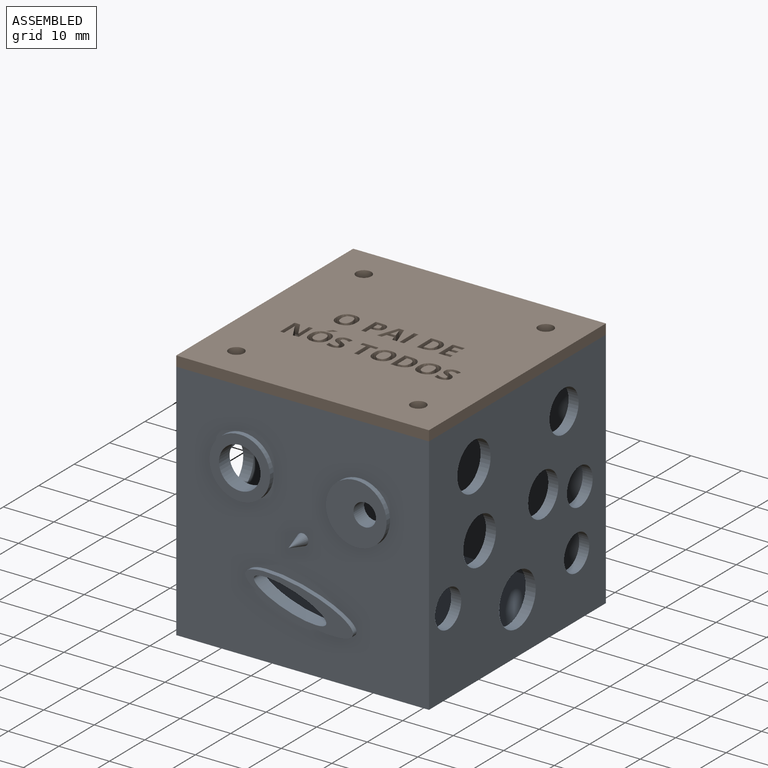
[diagram: assembled view]
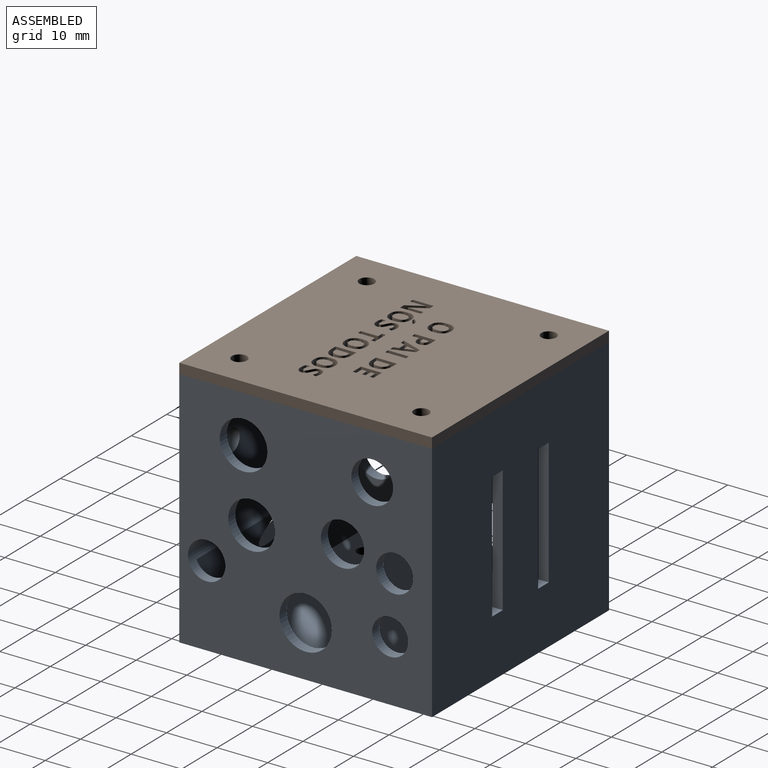
[diagram: assembled view, second angle]
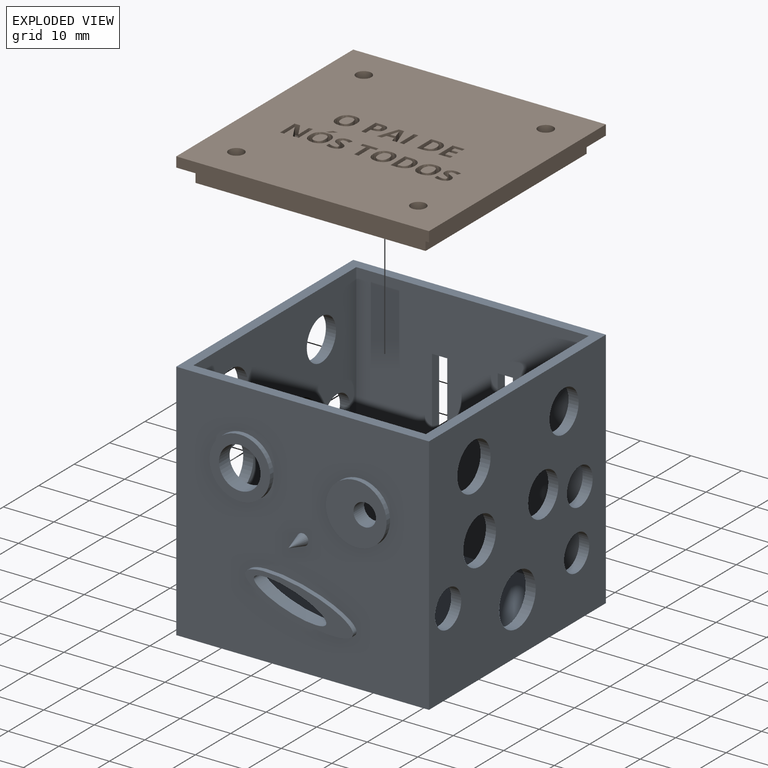
[diagram: exploded view]
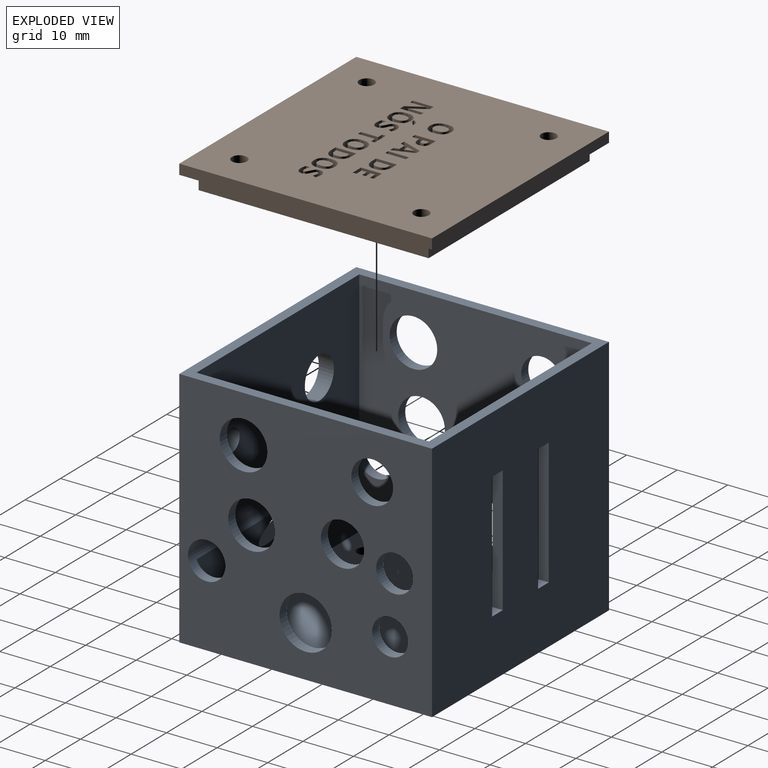
[diagram: exploded view, second angle]
ASSEMBLY  parts=2 mates=3
PART A: 49 faces, bbox 50x54x48 mm
  f0: plane 50x48mm, normal (0,1,0), area 2250mm2, adj f3,f4,f5,f7,f41,f42,f43,f44
  f1: plane 46x46mm, normal (0,-1,0), area 1966mm2, adj f3,f8,f10,f11,f41,f42,f43,f44
  f2: plane 46x12.63mm, normal (0,1,0), area 539.4mm2, adj f8,f10,f11,f22,f26
  f3: plane 50x50mm, normal (0,0,1), area 384mm2, adj f0,f1,f4,f5,f6,f8,f9,f10
  f4: plane 50x48mm, normal (1,0,0), area 1943.4mm2, adj f0,f3,f6,f7,f26,f27,f28,f29
  f5: plane 50x48mm, normal (-1,0,0), area 1943.4mm2, adj f0,f3,f6,f7,f26,f34,f35,f36
  f6: plane 50x48mm, normal (0,-1,0), area 2066.5mm2, adj f3,f4,f5,f7,f16,f18,f23,f25
  f7: plane 50x50mm, normal (0,0,-1), area 2471.7mm2, adj f0,f4,f5,f6,f12,f13,f14,f15
  f8: plane 46x46mm, normal (1,0,0), area 1659.9mm2, adj f1,f2,f3,f9,f11,f26,f34,f35
  f9: plane 46x30.52mm, normal (0,1,0), area 1335.2mm2, adj f3,f8,f10,f20,f21,f26
  f10: plane 46x46mm, normal (-1,0,0), area 1659.9mm2, adj f1,f2,f3,f9,f11,f26,f27,f28
  f11: plane 46x46mm, normal (0,0,1), area 2087.7mm2, adj f1,f2,f8,f10,f12,f13,f14,f15
  f12: cylinder r=1.5mm len=3mm, axis (0,0,1), area 18.8mm2, adj f7,f11
  f13: cylinder r=1.5mm len=3mm, axis (0,0,1), area 18.8mm2, adj f7,f11
  f14: cylinder r=1.5mm len=3mm, axis (0,0,1), area 18.8mm2, adj f7,f11
  f15: cylinder r=1.5mm len=3mm, axis (0,0,1), area 18.8mm2, adj f7,f11
  f16: cylinder r=5.99mm len=11.99mm, axis (0,1,0), area 37.7mm2, adj f6,f17
  f17: plane 11.99x11.99mm, normal (0,-1,0), area 59.7mm2, adj f16,f21
  f18: cylinder r=5.99mm len=11.99mm, axis (0,1,0), area 37.7mm2, adj f6,f19
  f19: plane 11.99x11.99mm, normal (0,-1,0), area 97.3mm2, adj f18,f20
  f20: cylinder r=2.22mm len=4.44mm, axis (0,-1,0), area 41.9mm2, adj f9,f19
  f21: cylinder r=4.11mm len=8.22mm, axis (0,-1,0), area 77.5mm2, adj f9,f17
  f22: extruded ~14.28x5.93mm, area 95.6mm2, adj f2,f24,f26
  f23: extruded ~21.3x8mm, area 47.7mm2, adj f6,f24
  f24: plane 21.35x8mm, normal (0,-1,0), area 56.5mm2, adj f22,f23
  f25: cone r=0mm half-angle=15.9deg, axis (0,1,0), area 14.9mm2, adj f6
  f26: cylinder r=3.7mm len=50mm, axis (1,0,0), area 222mm2, adj f2,f4,f5,f8,f9,f10,f22
  f27: cylinder r=4.71mm len=9.42mm, axis (1,0,0), area 59.2mm2, adj f4,f10
  f28: cylinder r=3.65mm len=7.3mm, axis (1,0,0), area 45.9mm2, adj f4,f10
  f29: cylinder r=3.56mm len=7.13mm, axis (1,0,0), area 44.8mm2, adj f4,f10
  f30: cylinder r=4.13mm len=8.26mm, axis (1,0,0), area 51.9mm2, adj f4,f10
  f31: cylinder r=4.28mm len=8.55mm, axis (1,0,0), area 53.7mm2, adj f4,f10
  f32: cylinder r=4.62mm len=9.24mm, axis (1,0,0), area 58.1mm2, adj f4,f10
  f33: cylinder r=5.17mm len=10.34mm, axis (1,0,0), area 65mm2, adj f4,f10
  f34: cylinder r=4.71mm len=9.42mm, axis (1,0,0), area 59.2mm2, adj f5,f8
  f35: cylinder r=3.65mm len=7.3mm, axis (1,0,0), area 45.9mm2, adj f5,f8
  f36: cylinder r=3.56mm len=7.13mm, axis (1,0,0), area 44.8mm2, adj f5,f8
  f37: cylinder r=4.13mm len=8.26mm, axis (1,0,0), area 51.9mm2, adj f5,f8
  f38: cylinder r=4.28mm len=8.55mm, axis (1,0,0), area 53.7mm2, adj f5,f8
  f39: cylinder r=4.62mm len=9.24mm, axis (1,0,0), area 58.1mm2, adj f5,f8
  f40: cylinder r=5.17mm len=10.34mm, axis (1,0,0), area 65mm2, adj f5,f8
  f41: plane 3x2mm, normal (0,0,-1), area 6mm2, adj f0,f1,f42,f44
  f42: plane 25x2mm, normal (-1,0,0), area 50mm2, adj f0,f1,f41,f43
  f43: plane 3x2mm, normal (0,0,1), area 6mm2, adj f0,f1,f42,f44
  f44: plane 25x2mm, normal (1,0,0), area 50mm2, adj f0,f1,f41,f43
  f45: plane 3x2mm, normal (0,0,-1), area 6mm2, adj f0,f1,f46,f48
  f46: plane 25x2mm, normal (-1,0,0), area 50mm2, adj f0,f1,f45,f47
  f47: plane 3x2mm, normal (0,0,1), area 6mm2, adj f0,f1,f46,f48
  f48: plane 25x2mm, normal (1,0,0), area 50mm2, adj f0,f1,f45,f47
PART B: 247 faces, bbox 50x50x5 mm
  f0: plane 50x50mm, normal (0,0,-1), area 2337mm2, adj f4,f5,f6,f7,f10,f11,f12,f13
  f1: plane 45.5x3mm, normal (0,1,0), area 136.5mm2, adj f2,f8,f9,f14
  f2: plane 45.5x3mm, normal (-1,0,0), area 136.5mm2, adj f1,f3,f9,f14
  f3: plane 45.5x3mm, normal (0,-1,0), area 136.5mm2, adj f2,f8,f9,f14
  f4: cylinder r=1.5mm len=5mm, axis (0,0,-1), area 47.1mm2, adj f0,f9
  f5: cylinder r=1.5mm len=5mm, axis (0,0,-1), area 47.1mm2, adj f0,f9
  f6: cylinder r=1.5mm len=5mm, axis (0,0,-1), area 47.1mm2, adj f0,f9
  f7: cylinder r=1.5mm len=5mm, axis (0,0,-1), area 47.1mm2, adj f0,f9
  f8: plane 45.5x3mm, normal (1,0,0), area 136.5mm2, adj f1,f3,f9,f14
  f9: plane 45.5x45.5mm, normal (0,0,1), area 2042mm2, adj f1,f2,f3,f4,f5,f6,f7,f8
  f10: plane 50x2mm, normal (0,-1,0), area 100mm2, adj f0,f11,f13,f14
  f11: plane 50x2mm, normal (1,0,0), area 100mm2, adj f0,f10,f12,f14
  f12: plane 50x2mm, normal (0,1,0), area 100mm2, adj f0,f11,f13,f14
  f13: plane 50x2mm, normal (-1,0,0), area 100mm2, adj f0,f10,f12,f14
  f14: plane 50x50mm, normal (0,0,1), area 429.7mm2, adj f1,f2,f3,f8,f10,f11,f12,f13
  f15: plane 4.11x2mm, normal (1,0,0), area 8.2mm2, adj f0,f16,f18,f19
  f16: plane 2x0.87mm, normal (0,-1,0), area 1.7mm2, adj f0,f15,f17,f19
  f17: plane 4.11x2mm, normal (-1,0,0), area 8.2mm2, adj f0,f16,f18,f19
  f18: plane 2x0.87mm, normal (0,1,0), area 1.7mm2, adj f0,f15,f17,f19
  f19: plane 4.11x0.87mm, normal (0,0,-1), area 3.6mm2, adj f15,f16,f17,f18
  f20: extruded ~2x1.5mm, area 3.1mm2, adj f21,f31,f32,f240
  f21: plane 2x1.07mm, normal (0,1,0), area 2.1mm2, adj f20,f22,f32,f240
  f22: extruded ~2x1.78mm, area 3.7mm2, adj f21,f31,f32,f240
  f23: plane 2x0.98mm, normal (0.96,-0.29,0), area 2mm2, adj f0,f24,f30,f32
  f24: plane 2x0.94mm, normal (0,-1,0), area 1.9mm2, adj f0,f23,f25,f32
  f25: plane 4.13x2mm, normal (-0.94,0.33,0), area 8.8mm2, adj f0,f24,f26,f32
  f26: plane 2x1.07mm, normal (0,1,0), area 2.1mm2, adj f0,f25,f27,f32
  f27: plane 4.13x2mm, normal (0.94,0.33,0), area 8.7mm2, adj f0,f26,f28,f32
  f28: plane 2x0.94mm, normal (0,-1,0), area 1.9mm2, adj f0,f27,f29,f32
  f29: plane 2x0.98mm, normal (-0.96,-0.29,0), area 2mm2, adj f0,f28,f30,f32
  f30: plane 2x1.5mm, normal (0,-1,0), area 3mm2, adj f0,f23,f29,f32
  f31: extruded ~2x0.28mm, area 0.6mm2, adj f20,f22,f32,f240
  f32: plane 4.13x3.97mm, normal (0,0,-1), area 7.7mm2, adj f20,f21,f22,f23,f24,f25,f26,f27
  f33: extruded ~2x1.32mm, area 4mm2, adj f34,f44,f45,f241
  f34: extruded ~2x1.35mm, area 4.2mm2, adj f33,f35,f45,f241
  f35: plane 2x0.37mm, normal (0,1,0), area 0.7mm2, adj f34,f36,f45,f241
  f36: plane 2.68x2mm, normal (-1,0,0), area 5.4mm2, adj f35,f44,f45,f241
  f37: extruded ~2x1.55mm, area 3.4mm2, adj f0,f38,f43,f45
  f38: extruded ~2x1.48mm, area 3.3mm2, adj f0,f37,f39,f45
  f39: extruded ~2x1.56mm, area 3.4mm2, adj f0,f38,f40,f45
  f40: plane 2x1.29mm, normal (0,1,0), area 2.6mm2, adj f0,f39,f41,f45
  f41: plane 4.11x2mm, normal (1,0,0), area 8.2mm2, adj f0,f40,f42,f45
  f42: plane 2x1.16mm, normal (0,-1,0), area 2.3mm2, adj f0,f41,f43,f45
  f43: extruded ~2x1.67mm, area 3.6mm2, adj f0,f37,f42,f45
  f44: plane 2x0.46mm, normal (0,-1,0), area 0.9mm2, adj f33,f36,f45,f241
  f45: plane 4.11x3.41mm, normal (0,0,-1), area 8.6mm2, adj f33,f34,f35,f36,f37,f38,f39,f40
  f46: extruded ~2x1.04mm, area 2.2mm2, adj f47,f59,f60,f242
  f47: extruded ~2x1.04mm, area 2.2mm2, adj f46,f48,f60,f242
  f48: extruded ~2x0.78mm, area 1.8mm2, adj f47,f49,f60,f242
  f49: extruded ~2x1.39mm, area 4mm2, adj f48,f50,f60,f242
  f50: extruded ~2x1.39mm, area 4mm2, adj f49,f59,f60,f242
  f51: extruded ~2x1.57mm, area 3.4mm2, adj f0,f52,f58,f60
  f52: extruded ~2x1.57mm, area 3.4mm2, adj f0,f51,f53,f60
  f53: extruded ~2x1.45mm, area 3.2mm2, adj f0,f52,f54,f60
  f54: extruded ~2x1.45mm, area 3.2mm2, adj f0,f53,f55,f60
  f55: extruded ~2x1.57mm, area 3.4mm2, adj f0,f54,f56,f60
  f56: extruded ~2x1.57mm, area 3.4mm2, adj f0,f55,f57,f60
  f57: extruded ~2x1.45mm, area 3.2mm2, adj f0,f56,f58,f60
  f58: extruded ~2x1.45mm, area 3.2mm2, adj f0,f51,f57,f60
  f59: extruded ~2x0.78mm, area 1.8mm2, adj f46,f50,f60,f242
  f60: plane 4.23x3.91mm, normal (0,0,-1), area 8.8mm2, adj f46,f47,f48,f49,f50,f51,f52,f53
  f61: extruded ~2x1.04mm, area 2.2mm2, adj f62,f74,f75,f243
  f62: extruded ~2x1.04mm, area 2.2mm2, adj f61,f63,f75,f243
  f63: extruded ~2x0.78mm, area 1.8mm2, adj f62,f64,f75,f243
  f64: extruded ~2x1.39mm, area 4mm2, adj f63,f65,f75,f243
  f65: extruded ~2x1.39mm, area 4mm2, adj f64,f74,f75,f243
  f66: extruded ~2x1.57mm, area 3.4mm2, adj f0,f67,f73,f75
  f67: extruded ~2x1.57mm, area 3.4mm2, adj f0,f66,f68,f75
  f68: extruded ~2x1.45mm, area 3.2mm2, adj f0,f67,f69,f75
  f69: extruded ~2x1.45mm, area 3.2mm2, adj f0,f68,f70,f75
  f70: extruded ~2x1.57mm, area 3.4mm2, adj f0,f69,f71,f75
  f71: extruded ~2x1.57mm, area 3.4mm2, adj f0,f70,f72,f75
  f72: extruded ~2x1.45mm, area 3.2mm2, adj f0,f71,f73,f75
  f73: extruded ~2x1.45mm, area 3.2mm2, adj f0,f66,f72,f75
  f74: extruded ~2x0.78mm, area 1.8mm2, adj f61,f65,f75,f243
  f75: plane 4.23x3.91mm, normal (0,0,-1), area 8.8mm2, adj f61,f62,f63,f64,f65,f66,f67,f68
  f76: extruded ~2x1.32mm, area 4mm2, adj f77,f87,f88,f244
  f77: extruded ~2x1.35mm, area 4.2mm2, adj f76,f78,f88,f244
  f78: plane 2x0.37mm, normal (0,1,0), area 0.7mm2, adj f77,f79,f88,f244
  f79: plane 2.68x2mm, normal (-1,0,0), area 5.4mm2, adj f78,f87,f88,f244
  f80: extruded ~2x1.55mm, area 3.4mm2, adj f0,f81,f86,f88
  f81: extruded ~2x1.48mm, area 3.3mm2, adj f0,f80,f82,f88
  f82: extruded ~2x1.56mm, area 3.4mm2, adj f0,f81,f83,f88
  f83: plane 2x1.29mm, normal (0,1,0), area 2.6mm2, adj f0,f82,f84,f88
  f84: plane 4.11x2mm, normal (1,0,0), area 8.2mm2, adj f0,f83,f85,f88
  f85: plane 2x1.16mm, normal (0,-1,0), area 2.3mm2, adj f0,f84,f86,f88
  f86: extruded ~2x1.67mm, area 3.6mm2, adj f0,f80,f85,f88
  f87: plane 2x0.46mm, normal (0,-1,0), area 0.9mm2, adj f76,f79,f88,f244
  f88: plane 4.11x3.41mm, normal (0,0,-1), area 8.6mm2, adj f76,f77,f78,f79,f80,f81,f82,f83
  f89: extruded ~2x1.04mm, area 2.2mm2, adj f90,f102,f103,f245
  f90: extruded ~2x1.04mm, area 2.2mm2, adj f89,f91,f103,f245
  f91: extruded ~2x0.78mm, area 1.8mm2, adj f90,f92,f103,f245
  f92: extruded ~2x1.39mm, area 4mm2, adj f91,f93,f103,f245
  f93: extruded ~2x1.39mm, area 4mm2, adj f92,f102,f103,f245
  f94: extruded ~2x1.57mm, area 3.4mm2, adj f0,f95,f101,f103
  f95: extruded ~2x1.57mm, area 3.4mm2, adj f0,f94,f96,f103
  f96: extruded ~2x1.45mm, area 3.2mm2, adj f0,f95,f97,f103
  f97: extruded ~2x1.45mm, area 3.2mm2, adj f0,f96,f98,f103
  f98: extruded ~2x1.57mm, area 3.4mm2, adj f0,f97,f99,f103
  f99: extruded ~2x1.57mm, area 3.4mm2, adj f0,f98,f100,f103
  f100: extruded ~2x1.45mm, area 3.2mm2, adj f0,f99,f101,f103
  f101: extruded ~2x1.45mm, area 3.2mm2, adj f0,f94,f100,f103
  f102: extruded ~2x0.78mm, area 1.8mm2, adj f89,f93,f103,f245
  f103: plane 4.23x3.91mm, normal (0,0,-1), area 8.8mm2, adj f89,f90,f91,f92,f93,f94,f95,f96
  f104: extruded ~2x0.88mm, area 2mm2, adj f0,f105,f131,f132
  f105: extruded ~2x0.68mm, area 1.4mm2, adj f0,f104,f106,f132
  f106: extruded ~2x0.79mm, area 1.9mm2, adj f0,f105,f107,f132
  f107: extruded ~2x0.55mm, area 1.2mm2, adj f0,f106,f108,f132
  f108: extruded ~2x0.17mm, area 0.5mm2, adj f0,f107,f109,f132
  f109: extruded ~2x0.2mm, area 0.4mm2, adj f0,f108,f110,f132
  f110: extruded ~2x0.3mm, area 0.7mm2, adj f0,f109,f111,f132
  f111: extruded ~2x0.38mm, area 0.8mm2, adj f0,f110,f112,f132
  f112: extruded ~2x0.42mm, area 0.9mm2, adj f0,f111,f113,f132
  f113: extruded ~2x0.54mm, area 1.2mm2, adj f0,f112,f114,f132
  f114: plane 2x0.68mm, normal (-0.92,-0.38,0), area 1.5mm2, adj f0,f113,f115,f132
  f115: extruded ~2x0.61mm, area 1.3mm2, adj f0,f114,f116,f132
  f116: extruded ~2x0.61mm, area 1.2mm2, adj f0,f115,f117,f132
  f117: extruded ~2x1.02mm, area 2.2mm2, adj f0,f116,f118,f132
  f118: extruded ~2x0.86mm, area 1.9mm2, adj f0,f117,f119,f132
  f119: extruded ~2x0.51mm, area 1mm2, adj f0,f118,f120,f132
  f120: extruded ~2x0.38mm, area 1mm2, adj f0,f119,f121,f132
  f121: extruded ~2x0.56mm, area 1.3mm2, adj f0,f120,f122,f132
  f122: extruded ~2x0.53mm, area 1.2mm2, adj f0,f121,f123,f132
  f123: extruded ~2x0.2mm, area 0.5mm2, adj f0,f122,f124,f132
  f124: extruded ~2x0.22mm, area 0.5mm2, adj f0,f123,f125,f132
  f125: extruded ~2x0.33mm, area 0.8mm2, adj f0,f124,f126,f132
  f126: extruded ~2x0.44mm, area 0.9mm2, adj f0,f125,f127,f132
  f127: extruded ~2x0.53mm, area 1.1mm2, adj f0,f126,f128,f132
  f128: extruded ~2x0.7mm, area 1.5mm2, adj f0,f127,f129,f132
  f129: plane 2x0.81mm, normal (1,0,0), area 1.6mm2, adj f0,f128,f130,f132
  f130: extruded ~2x1.16mm, area 2.4mm2, adj f0,f129,f131,f132
  f131: extruded ~2x1.11mm, area 2.4mm2, adj f0,f104,f130,f132
  f132: plane 4.22x2.68mm, normal (0,0,-1), area 6.4mm2, adj f104,f105,f106,f107,f108,f109,f110,f111
  f133: plane 2x0.08mm, normal (1,0,0), area 0.2mm2, adj f0,f134,f139,f140
  f134: plane 2x0.57mm, normal (0,-1,0), area 1.1mm2, adj f0,f133,f135,f140
  f135: extruded ~2x0.55mm, area 1.4mm2, adj f0,f134,f136,f140
  f136: extruded ~2x0.5mm, area 1.3mm2, adj f0,f135,f137,f140
  f137: plane 2x0.06mm, normal (-1,0,0), area 0.1mm2, adj f0,f136,f138,f140
  f138: plane 2x0.96mm, normal (0,1,0), area 1.9mm2, adj f0,f137,f139,f140
  f139: extruded ~2x0.85mm, area 2.1mm2, adj f0,f133,f138,f140
  f140: plane 1.62x0.92mm, normal (0,0,-1), area 0.8mm2, adj f133,f134,f135,f136,f137,f138,f139
  f141: plane 2x1.11mm, normal (0,-1,0), area 2.2mm2, adj f0,f142,f154,f155
  f142: plane 4.11x2mm, normal (-1,0,0), area 8.2mm2, adj f0,f141,f143,f155
  f143: plane 2x0.78mm, normal (0,1,0), area 1.6mm2, adj f0,f142,f144,f155
  f144: plane 2x1.95mm, normal (1,0,0), area 3.9mm2, adj f0,f143,f145,f155
  f145: extruded ~2x1.13mm, area 2.3mm2, adj f0,f144,f146,f155
  f146: plane 2x0.02mm, normal (0,1,0), area 0mm2, adj f0,f145,f147,f155
  f147: plane 3.08x2mm, normal (-0.87,0.5,0), area 7.1mm2, adj f0,f146,f148,f155
  f148: plane 2x1.1mm, normal (0,1,0), area 2.2mm2, adj f0,f147,f149,f155
  f149: plane 4.11x2mm, normal (1,0,0), area 8.2mm2, adj f0,f148,f150,f155
  f150: plane 2x0.78mm, normal (0,-1,0), area 1.6mm2, adj f0,f149,f151,f155
  f151: plane 2x1.93mm, normal (-1,0,0), area 3.9mm2, adj f0,f150,f152,f155
  f152: extruded ~2x1.17mm, area 2.4mm2, adj f0,f151,f153,f155
  f153: plane 2x0.03mm, normal (0,-1,0), area 0.1mm2, adj f0,f152,f154,f155
  f154: plane 3.11x2mm, normal (0.87,-0.5,0), area 7.2mm2, adj f0,f141,f153,f155
  f155: plane 4.11x3.65mm, normal (0,0,-1), area 9.6mm2, adj f141,f142,f143,f144,f145,f146,f147,f148
  f156: plane 2.37x2mm, normal (0,-1,0), area 4.7mm2, adj f0,f157,f167,f168
  f157: plane 2x0.72mm, normal (-1,0,0), area 1.4mm2, adj f0,f156,f158,f168
  f158: plane 2x1.49mm, normal (0,1,0), area 3mm2, adj f0,f157,f159,f168
  f159: plane 2x1.06mm, normal (-1,0,0), area 2.1mm2, adj f0,f158,f160,f168
  f160: plane 2x1.39mm, normal (0,-1,0), area 2.8mm2, adj f0,f159,f161,f168
  f161: plane 2x0.71mm, normal (-1,0,0), area 1.4mm2, adj f0,f160,f162,f168
  f162: plane 2x1.39mm, normal (0,1,0), area 2.8mm2, adj f0,f161,f163,f168
  f163: plane 2x0.9mm, normal (-1,0,0), area 1.8mm2, adj f0,f162,f164,f168
  f164: plane 2x1.49mm, normal (0,-1,0), area 3mm2, adj f0,f163,f165,f168
  f165: plane 2x0.71mm, normal (-1,0,0), area 1.4mm2, adj f0,f164,f166,f168
  f166: plane 2.37x2mm, normal (0,1,0), area 4.7mm2, adj f0,f165,f167,f168
  f167: plane 4.11x2mm, normal (1,0,0), area 8.2mm2, adj f0,f156,f166,f168
  f168: plane 4.11x2.37mm, normal (0,0,-1), area 6.7mm2, adj f156,f157,f158,f159,f160,f161,f162,f163
  f169: plane 2x0.87mm, normal (0,-1,0), area 1.7mm2, adj f0,f170,f176,f177
  f170: plane 3.38x2mm, normal (-1,0,0), area 6.8mm2, adj f0,f169,f171,f177
  f171: plane 2x1.12mm, normal (0,-1,0), area 2.2mm2, adj f0,f170,f172,f177
  f172: plane 2x0.73mm, normal (-1,0,0), area 1.4mm2, adj f0,f171,f173,f177
  f173: plane 3.1x2mm, normal (0,1,0), area 6.2mm2, adj f0,f172,f174,f177
  f174: plane 2x0.73mm, normal (1,0,0), area 1.4mm2, adj f0,f173,f175,f177
  f175: plane 2x1.12mm, normal (0,-1,0), area 2.2mm2, adj f0,f174,f176,f177
  f176: plane 3.38x2mm, normal (1,0,0), area 6.8mm2, adj f0,f169,f175,f177
  f177: plane 4.11x3.1mm, normal (0,0,-1), area 5.2mm2, adj f169,f170,f171,f172,f173,f174,f175,f176
  f178: extruded ~2x0.88mm, area 2mm2, adj f0,f179,f205,f206
  f179: extruded ~2x0.68mm, area 1.4mm2, adj f0,f178,f180,f206
  f180: extruded ~2x0.79mm, area 1.9mm2, adj f0,f179,f181,f206
  f181: extruded ~2x0.55mm, area 1.2mm2, adj f0,f180,f182,f206
  f182: extruded ~2x0.17mm, area 0.5mm2, adj f0,f181,f183,f206
  f183: extruded ~2x0.2mm, area 0.4mm2, adj f0,f182,f184,f206
  f184: extruded ~2x0.3mm, area 0.7mm2, adj f0,f183,f185,f206
  f185: extruded ~2x0.38mm, area 0.8mm2, adj f0,f184,f186,f206
  f186: extruded ~2x0.42mm, area 0.9mm2, adj f0,f185,f187,f206
  f187: extruded ~2x0.54mm, area 1.2mm2, adj f0,f186,f188,f206
  f188: plane 2x0.68mm, normal (-0.92,-0.38,0), area 1.5mm2, adj f0,f187,f189,f206
  f189: extruded ~2x0.61mm, area 1.3mm2, adj f0,f188,f190,f206
  f190: extruded ~2x0.61mm, area 1.2mm2, adj f0,f189,f191,f206
  f191: extruded ~2x1.02mm, area 2.2mm2, adj f0,f190,f192,f206
  f192: extruded ~2x0.86mm, area 1.9mm2, adj f0,f191,f193,f206
  f193: extruded ~2x0.51mm, area 1mm2, adj f0,f192,f194,f206
  f194: extruded ~2x0.38mm, area 1mm2, adj f0,f193,f195,f206
  f195: extruded ~2x0.56mm, area 1.3mm2, adj f0,f194,f196,f206
  f196: extruded ~2x0.53mm, area 1.2mm2, adj f0,f195,f197,f206
  f197: extruded ~2x0.2mm, area 0.5mm2, adj f0,f196,f198,f206
  f198: extruded ~2x0.22mm, area 0.5mm2, adj f0,f197,f199,f206
  f199: extruded ~2x0.33mm, area 0.8mm2, adj f0,f198,f200,f206
  f200: extruded ~2x0.44mm, area 0.9mm2, adj f0,f199,f201,f206
  f201: extruded ~2x0.53mm, area 1.1mm2, adj f0,f200,f202,f206
  f202: extruded ~2x0.7mm, area 1.5mm2, adj f0,f201,f203,f206
  f203: plane 2x0.81mm, normal (1,0,0), area 1.6mm2, adj f0,f202,f204,f206
  f204: extruded ~2x1.16mm, area 2.4mm2, adj f0,f203,f205,f206
  f205: extruded ~2x1.11mm, area 2.4mm2, adj f0,f178,f204,f206
  f206: plane 4.22x2.68mm, normal (0,0,-1), area 6.4mm2, adj f178,f179,f180,f181,f182,f183,f184,f185
  f207: extruded ~2x1.04mm, area 2.2mm2, adj f208,f220,f221,f246
  f208: extruded ~2x1.04mm, area 2.2mm2, adj f207,f209,f221,f246
  f209: extruded ~2x0.78mm, area 1.8mm2, adj f208,f210,f221,f246
  f210: extruded ~2x1.39mm, area 4mm2, adj f209,f211,f221,f246
  f211: extruded ~2x1.39mm, area 4mm2, adj f210,f220,f221,f246
  f212: extruded ~2x1.57mm, area 3.4mm2, adj f0,f213,f219,f221
  f213: extruded ~2x1.57mm, area 3.4mm2, adj f0,f212,f214,f221
  f214: extruded ~2x1.45mm, area 3.2mm2, adj f0,f213,f215,f221
  f215: extruded ~2x1.45mm, area 3.2mm2, adj f0,f214,f216,f221
  f216: extruded ~2x1.57mm, area 3.4mm2, adj f0,f215,f217,f221
  f217: extruded ~2x1.57mm, area 3.4mm2, adj f0,f216,f218,f221
  f218: extruded ~2x1.45mm, area 3.2mm2, adj f0,f217,f219,f221
  f219: extruded ~2x1.45mm, area 3.2mm2, adj f0,f212,f218,f221
  f220: extruded ~2x0.78mm, area 1.8mm2, adj f207,f211,f221,f246
  f221: plane 4.23x3.91mm, normal (0,0,-1), area 8.8mm2, adj f207,f208,f209,f210,f211,f212,f213,f214
  f222: extruded ~2x1.02mm, area 2.3mm2, adj f0,f223,f237,f238
  f223: extruded ~2x0.96mm, area 2.1mm2, adj f0,f222,f224,f238
  f224: extruded ~2x1.14mm, area 2.4mm2, adj f0,f223,f225,f238
  f225: plane 2x1.31mm, normal (0,1,0), area 2.6mm2, adj f0,f224,f226,f238
  f226: plane 4.11x2mm, normal (1,0,0), area 8.2mm2, adj f0,f225,f227,f238
  f227: plane 2x0.87mm, normal (0,-1,0), area 1.7mm2, adj f0,f226,f228,f238
  f228: plane 2x1.46mm, normal (-1,0,0), area 2.9mm2, adj f0,f227,f229,f238
  f229: plane 2x0.37mm, normal (0,-1,0), area 0.7mm2, adj f0,f228,f237,f238
  f230: plane 2x0.29mm, normal (0,1,0), area 0.6mm2, adj f231,f236,f238,f239
  f231: plane 2x1.22mm, normal (-1,0,0), area 2.4mm2, adj f230,f232,f238,f239
  f232: plane 2x0.4mm, normal (0,-1,0), area 0.8mm2, adj f231,f233,f238,f239
  f233: extruded ~2x0.52mm, area 1.1mm2, adj f232,f234,f238,f239
  f234: extruded ~2x0.45mm, area 1mm2, adj f233,f235,f238,f239
  f235: extruded ~2x0.46mm, area 1mm2, adj f234,f236,f238,f239
  f236: extruded ~2x0.6mm, area 1.3mm2, adj f230,f235,f238,f239
  f237: extruded ~2x1.18mm, area 2.5mm2, adj f0,f222,f229,f238
  f238: plane 4.11x2.84mm, normal (0,0,-1), area 6.9mm2, adj f222,f223,f224,f225,f226,f227,f228,f229
  f239: plane 1.22x1.09mm, normal (0,0,-1), area 1.2mm2, adj f230,f231,f232,f233,f234,f235,f236
  f240: plane 1.78x1.07mm, normal (0,0,-1), area 0.9mm2, adj f20,f21,f22,f31
  f241: plane 2.68x1.63mm, normal (0,0,-1), area 3.8mm2, adj f33,f34,f35,f36,f44
  f242: plane 2.77x2.08mm, normal (0,0,-1), area 4.8mm2, adj f46,f47,f48,f49,f50,f59
  f243: plane 2.77x2.08mm, normal (0,0,-1), area 4.8mm2, adj f61,f62,f63,f64,f65,f74
  f244: plane 2.68x1.63mm, normal (0,0,-1), area 3.8mm2, adj f76,f77,f78,f79,f87
  f245: plane 2.77x2.08mm, normal (0,0,-1), area 4.8mm2, adj f89,f90,f91,f92,f93,f102
  f246: plane 2.77x2.08mm, normal (0,0,-1), area 4.8mm2, adj f207,f208,f209,f210,f211,f220
PLACE A t=(-12.22,-21.53,-18.49)mm fixed
PLACE B rot(axis=(1,0,0),180deg) t=(114.67,3.21,31.51)mm
MATE planar B.f32 <-> A.f3  axis (0,0,-1) through (-12.22,-21.53,29.51)mm
MATE planar B.f11 <-> A.f4  axis (1,0,0) through (12.78,-21.53,30.51)mm
MATE planar B.f12 <-> A.f6  axis (0,-1,0) through (12.78,-46.53,29.51)mm
